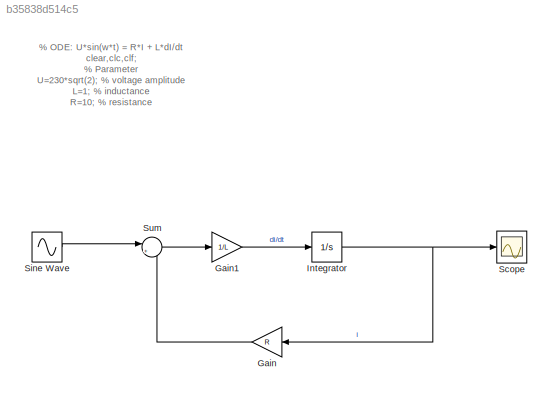
MODEL slx_b35838d514c5
KIND model
CONFIG AbsTol = auto
CONFIG EnableMultiTasking = off
CONFIG FixedStep = auto
CONFIG MaxStep = te/500
CONFIG MinStep = auto
CONFIG RelTol = 1e-3
CONFIG SampleTimeConstraint = Unconstrained
CONFIG SolverName = VariableStepAuto
CONFIG StartTime = 0.0
CONFIG StopTime = te
BLOCK [Gain] Gain
  Gain = R
  NameLocation = top
BLOCK [Gain] Gain1
  Gain = 1/L
BLOCK [Integrator] Integrator
BLOCK [Scope] Scope
  Floating = off
  NumInputPorts = 1
  ScopeSpecificationString = Simulink.scopes.TimeScopeBlockCfg('CurrentConfiguration', extmgr.ConfigurationSet(extmgr.Configuration('Core','General UI',true),extmgr.Configuration('Core','Source UI',true),extmgr.Configuration('Sources','WiredSimulink',true),extmgr.Configuration('Visuals','Time Domain',true,'SerializedDisplays',{struct('MinYLimReal','-1.40204','MaxYLimReal','2.3449','YLabelReal','','MinYLimMag','0.00000','MaxYL...<+1461ch>
BLOCK [Sin] Sine Wave
  Amplitude = U
  Frequency = w
  SampleTime = 0
BLOCK [Sum] Sum
  Inputs = |+-
ANNOTATION (root): % ODE: U*sin(w*t) = R*I + L*dI/dt clear,clc,clf; % Parameter U=230*sqrt(2); % voltage amplitude L=1; % inductance R=10; % resistance w=2*pi*50; % angular frequency te=0.5; % simulation time i0=0; % initial condition
LINE Gain1:1 -> Integrator:1
LINE Gain:1 -> Sum:2
NET Integrator:1 -> Gain:1, Scope:1
LINE Sine Wave:1 -> Sum:1
LINE Sum:1 -> Gain1:1
note: NET lines group one-source signal fan-out (src -> all destinations, sorted); 1:1 wires keep LINE
